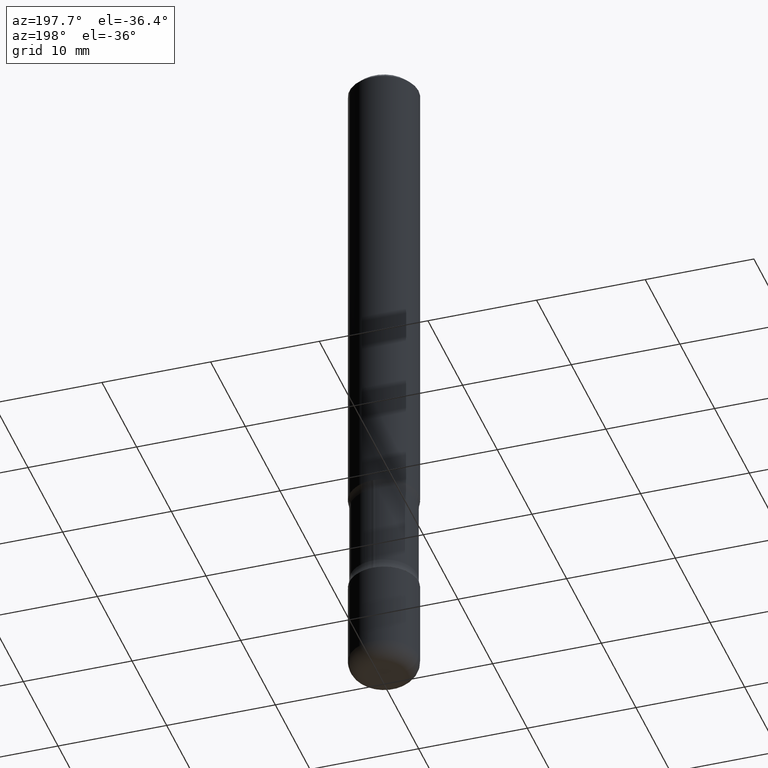
[diagram: clean part render]
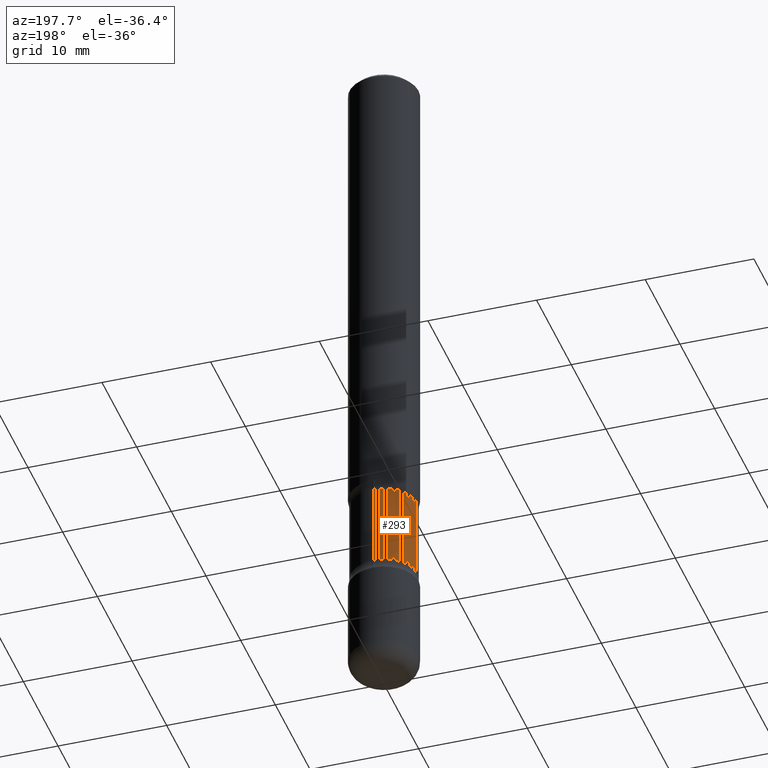
[diagram: same view with one face highlighted and labeled with its STEP entity id]
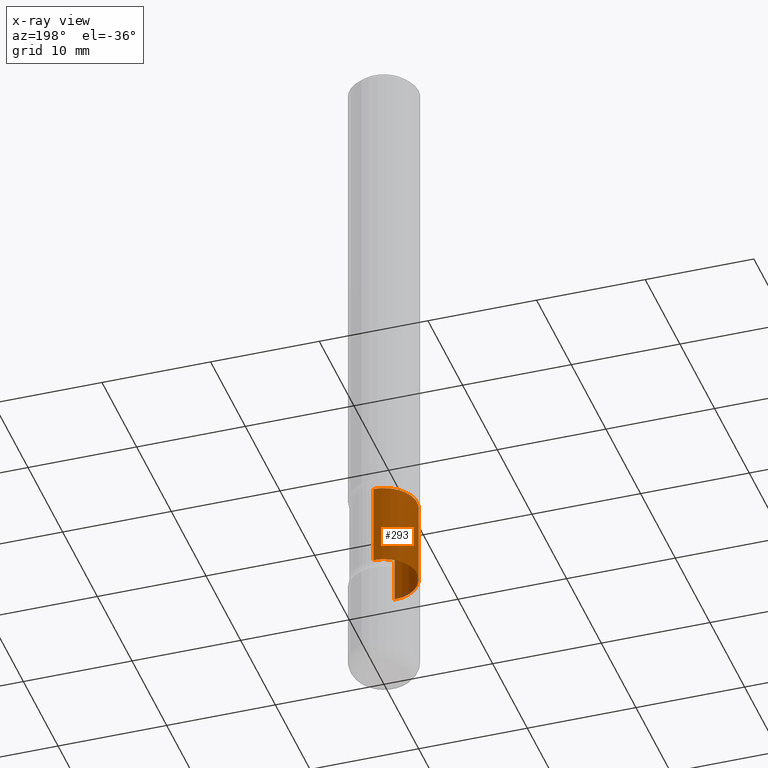
[diagram: x-ray of the same camera — body ghosted, the highlighted face saturated]
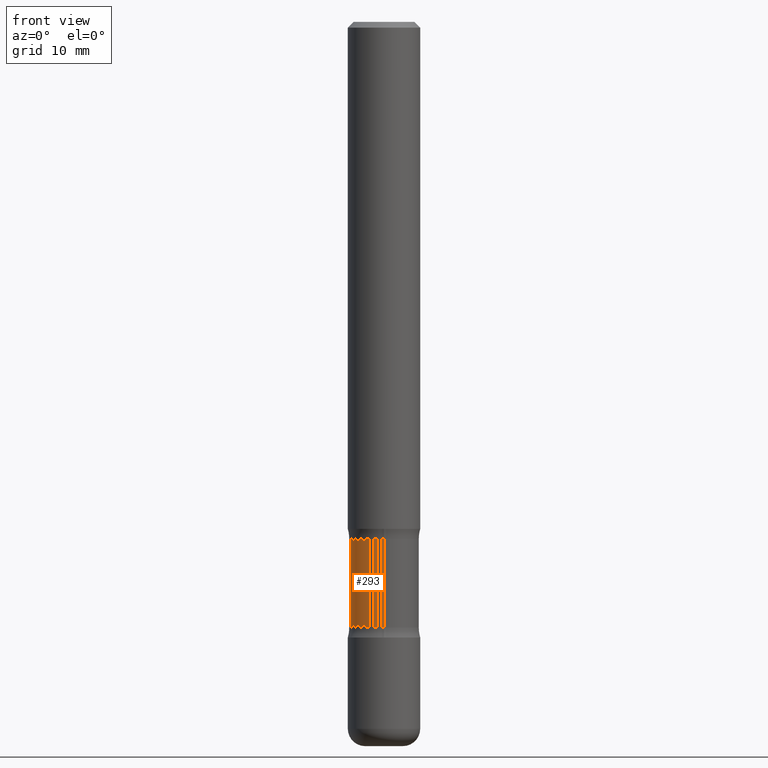
[diagram: same view with one face highlighted and labeled with its STEP entity id]
A machine part, auxiliary view. The second image highlights one B-rep face of the part: STEP entity #293.
The next image is the same camera in x-ray: the body ghosted, the highlighted face saturated — about 1% of this face is hidden behind the body in this view.
A second angle (front view) of the same face is appended — the face is thin or edge-on in the first view.
In plain terms, the highlighted cylindrical surface (edge-blend (fillet) strip) has radius 3.048 mm, axis along (0, -0, -1).
Its self-contained STEP definition (entity closure, byte-faithful):
#12 = EDGE_CURVE ( 'NONE', #547, #70, #141, .T. ) ;
#48 = CARTESIAN_POINT ( 'NONE',  ( 6.111489178996587108E-29, -8.719007768687004191E-15, -2.498166659601683826 ) ) ;
#69 = CIRCLE ( 'NONE', #652, 0.1199999999999998429 ) ;
#70 = VERTEX_POINT ( 'NONE', #577 ) ;
#88 = CARTESIAN_POINT ( 'NONE',  ( 4.363065748348955413E-29, -6.235295882366202606E-15, -1.785000000000000808 ) ) ;
#141 = LINE ( 'NONE', #390, #206 ) ;
#206 = VECTOR ( 'NONE', #508, 39.37007874015748143 ) ;
#222 = CARTESIAN_POINT ( 'NONE',  ( 8.379555213224018810E-16, 0.1199999999999925571, -2.090000000000000302 ) ) ;
#230 = CYLINDRICAL_SURFACE ( 'NONE', #687, 0.1199999999999998151 ) ;
#287 = VERTEX_POINT ( 'NONE', #485 ) ;
#293 = ADVANCED_FACE ( 'NONE', ( #732 ), #230, .T. ) ;
#337 = DIRECTION ( 'NONE',  ( 6.982962677686265922E-15, 1.000000000000000000, -4.553079989440446192E-15 ) ) ;
#360 = DIRECTION ( 'NONE',  ( 2.451633719983710684E-29, -3.482652831398484905E-15, -1.000000000000000000 ) ) ;
#376 = ORIENTED_EDGE ( 'NONE', *, *, #772, .T. ) ;
#390 = CARTESIAN_POINT ( 'NONE',  ( -8.232597597325212624E-16, -0.1200000000000085443, -2.498166659601683381 ) ) ;
#405 = DIRECTION ( 'NONE',  ( 2.451633719983710684E-29, -3.482652831398484905E-15, -1.000000000000000000 ) ) ;
#437 = EDGE_LOOP ( 'NONE', ( #590, #533, #376, #545 ) ) ;
#476 = DIRECTION ( 'NONE',  ( 2.451633719983710684E-29, -3.482652831398484905E-15, -1.000000000000000000 ) ) ;
#485 = CARTESIAN_POINT ( 'NONE',  ( 8.379555213223941896E-16, 0.1199999999999935701, -1.785000000000001252 ) ) ;
#508 = DIRECTION ( 'NONE',  ( 2.451633719983710684E-29, -3.482652831398484905E-15, -1.000000000000000000 ) ) ;
#532 = DIRECTION ( 'NONE',  ( 2.451633719983710684E-29, -3.482652831398484905E-15, -1.000000000000000000 ) ) ;
#533 = ORIENTED_EDGE ( 'NONE', *, *, #612, .T. ) ;
#545 = ORIENTED_EDGE ( 'NONE', *, *, #780, .F. ) ;
#547 = VERTEX_POINT ( 'NONE', #638 ) ;
#577 = CARTESIAN_POINT ( 'NONE',  ( -8.404110047269602518E-16, -0.1200000000000071426, -2.089999999999999414 ) ) ;
#590 = ORIENTED_EDGE ( 'NONE', *, *, #12, .F. ) ;
#601 = DIRECTION ( 'NONE',  ( 6.982962677686265922E-15, 1.000000000000000000, -4.553079989440444614E-15 ) ) ;
#612 = EDGE_CURVE ( 'NONE', #547, #287, #649, .T. ) ;
#637 = VECTOR ( 'NONE', #476, 39.37007874015748143 ) ;
#638 = CARTESIAN_POINT ( 'NONE',  ( -8.404110047269685348E-16, -0.1200000000000060324, -1.785000000000000142 ) ) ;
#649 = CIRCLE ( 'NONE', #751, 0.1199999999999998013 ) ;
#652 = AXIS2_PLACEMENT_3D ( 'NONE', #724, #360, #601 ) ;
#669 = CARTESIAN_POINT ( 'NONE',  ( 8.379555213224117418E-16, 0.1199999999999910860, -2.498166659601684714 ) ) ;
#687 = AXIS2_PLACEMENT_3D ( 'NONE', #48, #532, #787 ) ;
#720 = LINE ( 'NONE', #669, #637 ) ;
#724 = CARTESIAN_POINT ( 'NONE',  ( 5.110814032943984844E-29, -7.297504995942737535E-15, -2.089999999999999858 ) ) ;
#730 = VERTEX_POINT ( 'NONE', #222 ) ;
#732 = FACE_OUTER_BOUND ( 'NONE', #437, .T. ) ;
#751 = AXIS2_PLACEMENT_3D ( 'NONE', #88, #405, #337 ) ;
#772 = EDGE_CURVE ( 'NONE', #287, #730, #720, .T. ) ;
#780 = EDGE_CURVE ( 'NONE', #70, #730, #69, .T. ) ;
#787 = DIRECTION ( 'NONE',  ( 6.982962677686265922E-15, 1.000000000000000000, -4.553079989440445403E-15 ) ) ;